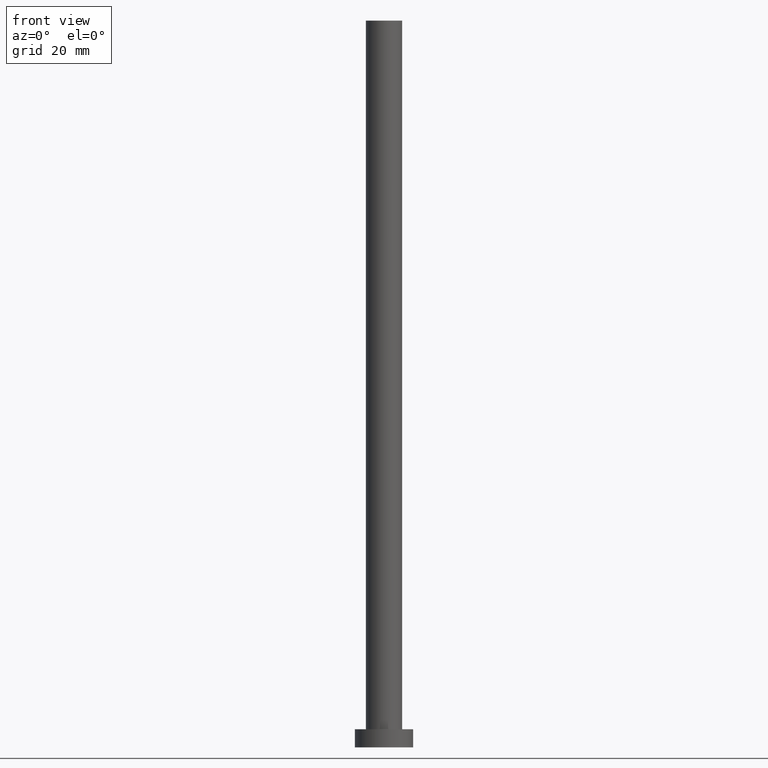
[diagram: clean part render]
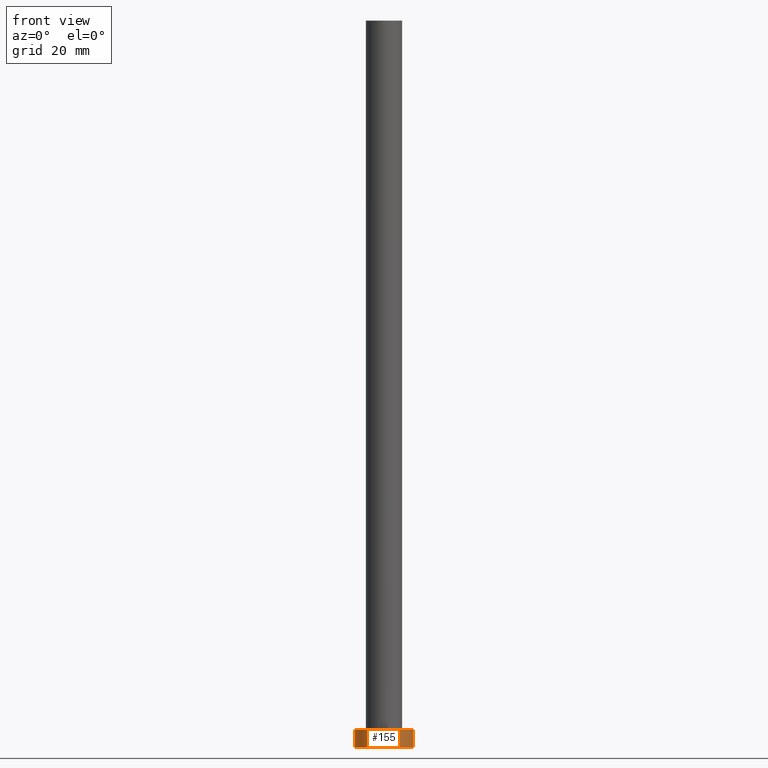
[diagram: same view with one face highlighted and labeled with its STEP entity id]
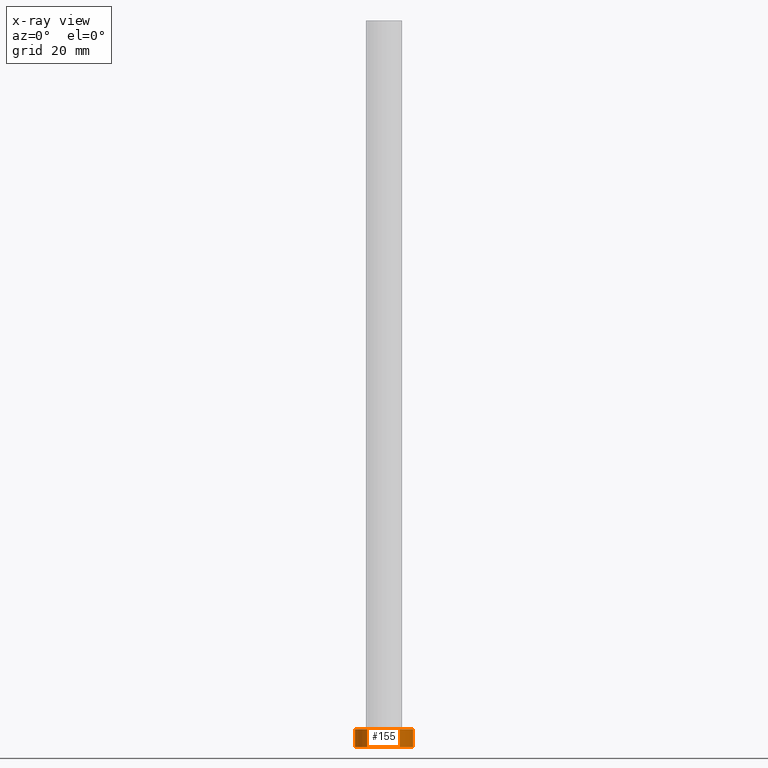
[diagram: x-ray of the same camera — body ghosted, the highlighted face saturated]
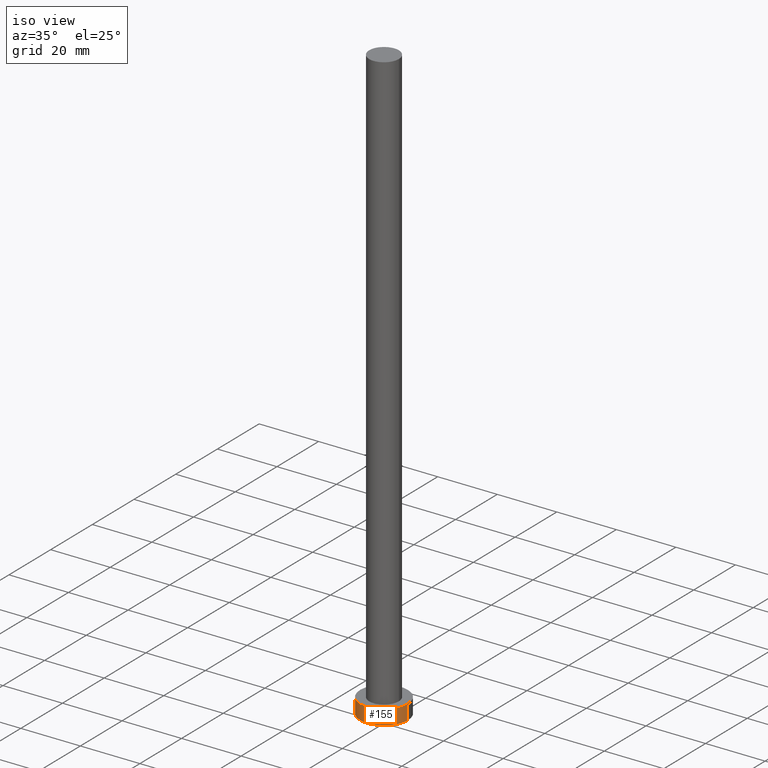
[diagram: same view with one face highlighted and labeled with its STEP entity id]
A machine part, front view. The second image highlights one B-rep face of the part: STEP entity #155.
The next image is the same camera in x-ray: the body ghosted, the highlighted face saturated — about 0% of this face is hidden behind the body in this view.
A second angle (iso view) of the same face is appended — the face is thin or edge-on in the first view.
In plain terms, the highlighted cylindrical surface (edge-blend (fillet) strip) has radius 8 mm, axis along (-0, -0, -1).
Its self-contained STEP definition (entity closure, byte-faithful):
#1 = AXIS2_PLACEMENT_3D ( 'NONE', #19, #166, #184 ) ;
#3 = AXIS2_PLACEMENT_3D ( 'NONE', #211, #82, #215 ) ;
#6 = CARTESIAN_POINT ( 'NONE',  ( 8.000000000000000000, 9.797174393178825657E-16, 5.000000000000000000 ) ) ;
#10 = EDGE_CURVE ( 'NONE', #68, #253, #73, .T. ) ;
#13 = CARTESIAN_POINT ( 'NONE',  ( 8.000000000000000000, 9.797174393178825657E-16, 0.000000000000000000 ) ) ;
#19 = CARTESIAN_POINT ( 'NONE',  ( 0.000000000000000000, 0.000000000000000000, 5.000000000000000000 ) ) ;
#26 = VECTOR ( 'NONE', #210, 1000.000000000000000 ) ;
#33 = DIRECTION ( 'NONE',  ( 0.000000000000000000, 0.000000000000000000, 1.000000000000000000 ) ) ;
#37 = LINE ( 'NONE', #138, #26 ) ;
#42 = CYLINDRICAL_SURFACE ( 'NONE', #3, 8.000000000000000000 ) ;
#64 = FACE_OUTER_BOUND ( 'NONE', #223, .T. ) ;
#68 = VERTEX_POINT ( 'NONE', #137 ) ;
#73 = CIRCLE ( 'NONE', #105, 8.000000000000000000 ) ;
#79 = VERTEX_POINT ( 'NONE', #119 ) ;
#82 = DIRECTION ( 'NONE',  ( -0.000000000000000000, -0.000000000000000000, -1.000000000000000000 ) ) ;
#96 = DIRECTION ( 'NONE',  ( 1.000000000000000000, 0.000000000000000000, 0.000000000000000000 ) ) ;
#101 = LINE ( 'NONE', #238, #216 ) ;
#103 = DIRECTION ( 'NONE',  ( -0.000000000000000000, -0.000000000000000000, -1.000000000000000000 ) ) ;
#105 = AXIS2_PLACEMENT_3D ( 'NONE', #131, #33, #96 ) ;
#112 = EDGE_CURVE ( 'NONE', #79, #168, #220, .T. ) ;
#119 = CARTESIAN_POINT ( 'NONE',  ( -8.000000000000000000, 0.000000000000000000, 5.000000000000000000 ) ) ;
#131 = CARTESIAN_POINT ( 'NONE',  ( 0.000000000000000000, 0.000000000000000000, 0.000000000000000000 ) ) ;
#137 = CARTESIAN_POINT ( 'NONE',  ( -8.000000000000000000, 0.000000000000000000, 0.000000000000000000 ) ) ;
#138 = CARTESIAN_POINT ( 'NONE',  ( -8.000000000000000000, 0.000000000000000000, 5.000000000000000000 ) ) ;
#155 = ADVANCED_FACE ( 'NONE', ( #64 ), #42, .T. ) ;
#164 = EDGE_CURVE ( 'NONE', #79, #68, #37, .T. ) ;
#166 = DIRECTION ( 'NONE',  ( 0.000000000000000000, 0.000000000000000000, 1.000000000000000000 ) ) ;
#168 = VERTEX_POINT ( 'NONE', #6 ) ;
#176 = ORIENTED_EDGE ( 'NONE', *, *, #10, .T. ) ;
#178 = EDGE_CURVE ( 'NONE', #168, #253, #101, .T. ) ;
#184 = DIRECTION ( 'NONE',  ( 1.000000000000000000, 0.000000000000000000, 0.000000000000000000 ) ) ;
#190 = ORIENTED_EDGE ( 'NONE', *, *, #164, .T. ) ;
#201 = ORIENTED_EDGE ( 'NONE', *, *, #112, .F. ) ;
#210 = DIRECTION ( 'NONE',  ( -0.000000000000000000, -0.000000000000000000, -1.000000000000000000 ) ) ;
#211 = CARTESIAN_POINT ( 'NONE',  ( 0.000000000000000000, 0.000000000000000000, 5.000000000000000000 ) ) ;
#215 = DIRECTION ( 'NONE',  ( -1.000000000000000000, 0.000000000000000000, 0.000000000000000000 ) ) ;
#216 = VECTOR ( 'NONE', #103, 1000.000000000000000 ) ;
#220 = CIRCLE ( 'NONE', #1, 8.000000000000000000 ) ;
#223 = EDGE_LOOP ( 'NONE', ( #248, #201, #190, #176 ) ) ;
#238 = CARTESIAN_POINT ( 'NONE',  ( 8.000000000000000000, 9.797174393178825657E-16, 5.000000000000000000 ) ) ;
#248 = ORIENTED_EDGE ( 'NONE', *, *, #178, .F. ) ;
#253 = VERTEX_POINT ( 'NONE', #13 ) ;